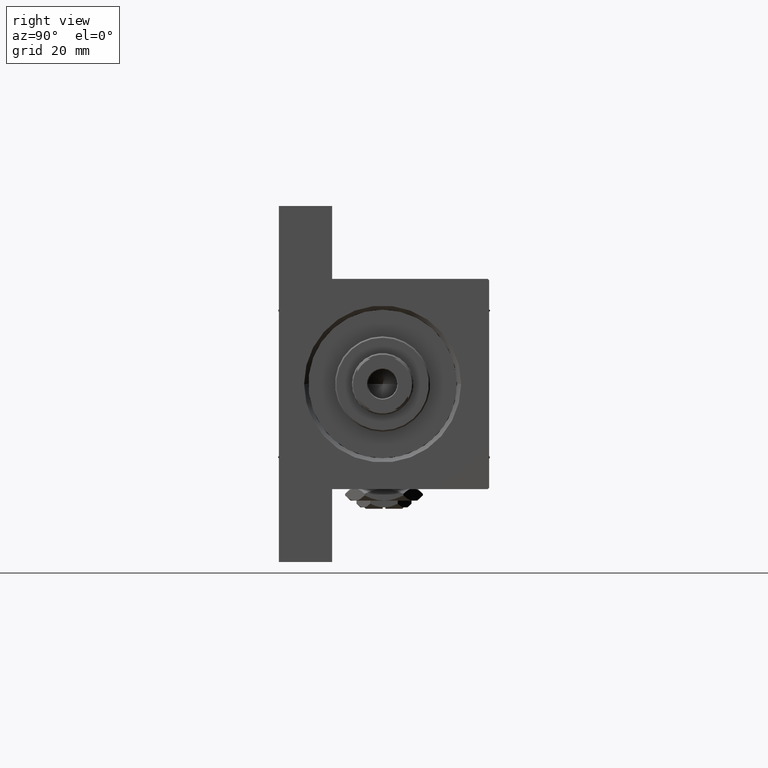
[diagram: clean part render]
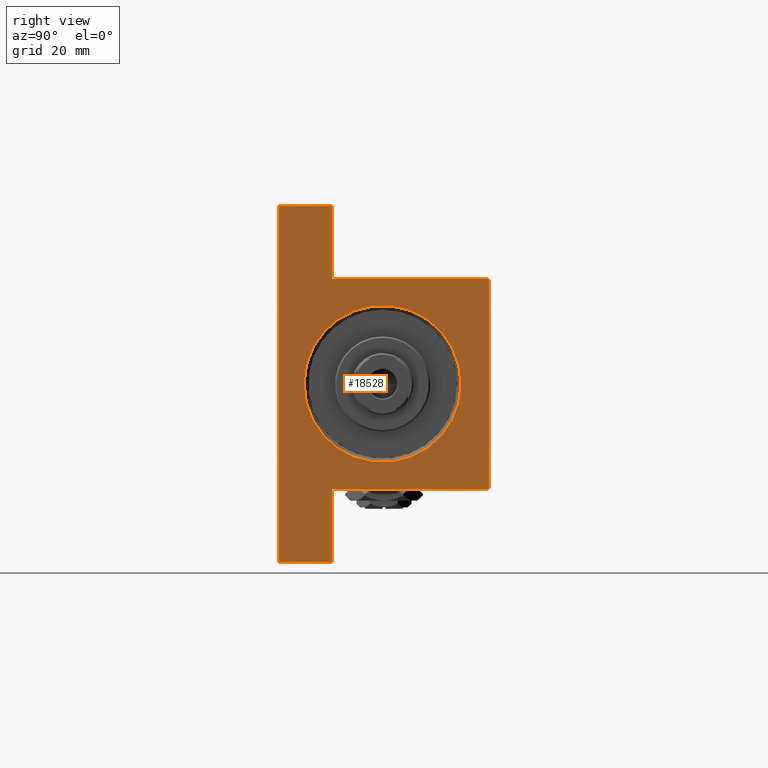
[diagram: same view with one face highlighted and labeled with its STEP entity id]
A machine part, right view. The second image highlights one B-rep face of the part: STEP entity #18528.
In plain terms, the highlighted planar face has unit normal (-1, 0, 0).
Its self-contained STEP definition (entity closure, byte-faithful):
#142 = EDGE_LOOP ( 'NONE', ( #10374, #45259, #18680, #6084, #9043, #12501, #19464, #40802, #32150, #34679 ) ) ;
#604 = CARTESIAN_POINT ( 'NONE',  ( 174.0000000000000284, 63.50000000000000000, -18.50000000000000000 ) ) ;
#2286 = CARTESIAN_POINT ( 'NONE',  ( 174.0000000000000000, -37.50000000000000000, 36.99999999999997868 ) ) ;
#2413 = CARTESIAN_POINT ( 'NONE',  ( 174.0000000000000000, -63.50000000000002842, -18.50000000000000000 ) ) ;
#3007 = VERTEX_POINT ( 'NONE', #19843 ) ;
#3911 = LINE ( 'NONE', #34521, #8886 ) ;
#4244 = EDGE_CURVE ( 'NONE', #33215, #37586, #14670, .T. ) ;
#4358 = AXIS2_PLACEMENT_3D ( 'NONE', #42066, #30586, #30097 ) ;
#4539 = DIRECTION ( 'NONE',  ( -1.000000000000000000, -0.000000000000000000, 0.000000000000000000 ) ) ;
#5129 = CARTESIAN_POINT ( 'NONE',  ( 174.0000000000000000, 37.00000000000000000, 37.49999999999999289 ) ) ;
#5724 = AXIS2_PLACEMENT_3D ( 'NONE', #16077, #27530, #35020 ) ;
#5906 = LINE ( 'NONE', #2413, #6669 ) ;
#6065 = CARTESIAN_POINT ( 'NONE',  ( 174.0000000000000000, 37.50000000000000000, 37.49999999999999289 ) ) ;
#6084 = ORIENTED_EDGE ( 'NONE', *, *, #46337, .T. ) ;
#6669 = VECTOR ( 'NONE', #25522, 1000.000000000000000 ) ;
#8013 = VECTOR ( 'NONE', #35561, 1000.000000000000000 ) ;
#8276 = CARTESIAN_POINT ( 'NONE',  ( 174.0000000000000000, 0.000000000000000000, 0.000000000000000000 ) ) ;
#8886 = VECTOR ( 'NONE', #11125, 1000.000000000000000 ) ;
#9043 = ORIENTED_EDGE ( 'NONE', *, *, #21683, .T. ) ;
#9373 = EDGE_LOOP ( 'NONE', ( #43297, #13211 ) ) ;
#9900 = CARTESIAN_POINT ( 'NONE',  ( 174.0000000000000000, -37.00000000000000000, 37.49999999999997868 ) ) ;
#10345 = DIRECTION ( 'NONE',  ( -0.000000000000000000, -1.000000000000000000, -0.000000000000000000 ) ) ;
#10374 = ORIENTED_EDGE ( 'NONE', *, *, #25444, .F. ) ;
#11125 = DIRECTION ( 'NONE',  ( 0.000000000000000000, -1.000000000000000000, 0.000000000000000000 ) ) ;
#11870 = AXIS2_PLACEMENT_3D ( 'NONE', #8276, #4539, #42401 ) ;
#11912 = CARTESIAN_POINT ( 'NONE',  ( 174.0000000000000000, -37.50000000000000000, 37.49999999999997868 ) ) ;
#11999 = FACE_BOUND ( 'NONE', #9373, .T. ) ;
#12501 = ORIENTED_EDGE ( 'NONE', *, *, #31206, .T. ) ;
#12864 = LINE ( 'NONE', #47506, #13703 ) ;
#13211 = ORIENTED_EDGE ( 'NONE', *, *, #4244, .T. ) ;
#13345 = DIRECTION ( 'NONE',  ( 0.000000000000000000, -0.7071067811865474617, 0.7071067811865474617 ) ) ;
#13703 = VECTOR ( 'NONE', #13345, 1000.000000000000114 ) ;
#14292 = CARTESIAN_POINT ( 'NONE',  ( 174.0000000000000284, 63.50000000000000000, -18.50000000000000000 ) ) ;
#14670 = CIRCLE ( 'NONE', #4358, 27.99999999999999645 ) ;
#15354 = LINE ( 'NONE', #42780, #21409 ) ;
#15421 = VECTOR ( 'NONE', #10345, 1000.000000000000000 ) ;
#16077 = CARTESIAN_POINT ( 'NONE',  ( 174.0000000000000000, 0.000000000000000000, -0.5000000000000004441 ) ) ;
#16370 = LINE ( 'NONE', #11912, #8013 ) ;
#16828 = CARTESIAN_POINT ( 'NONE',  ( 174.0000000000000000, -63.50000000000002842, -18.50000000000000000 ) ) ;
#17664 = VECTOR ( 'NONE', #20934, 1000.000000000000114 ) ;
#18528 = ADVANCED_FACE ( 'NONE', ( #11999, #43153 ), #31661, .F. ) ;
#18680 = ORIENTED_EDGE ( 'NONE', *, *, #19980, .T. ) ;
#19411 = VERTEX_POINT ( 'NONE', #40379 ) ;
#19464 = ORIENTED_EDGE ( 'NONE', *, *, #48987, .T. ) ;
#19843 = CARTESIAN_POINT ( 'NONE',  ( 174.0000000000000284, 63.50000000000000000, -18.50000000000000000 ) ) ;
#19980 = EDGE_CURVE ( 'NONE', #36112, #22591, #15354, .T. ) ;
#20934 = DIRECTION ( 'NONE',  ( -0.000000000000000000, -0.7071067811865474617, -0.7071067811865474617 ) ) ;
#21409 = VECTOR ( 'NONE', #30557, 1000.000000000000000 ) ;
#21660 = CARTESIAN_POINT ( 'NONE',  ( 174.0000000000000000, 0.000000000000000000, -28.49999999999999645 ) ) ;
#21683 = EDGE_CURVE ( 'NONE', #34446, #33506, #16370, .T. ) ;
#22591 = VERTEX_POINT ( 'NONE', #9900 ) ;
#23861 = EDGE_CURVE ( 'NONE', #3007, #41885, #26966, .T. ) ;
#25117 = EDGE_CURVE ( 'NONE', #3007, #34927, #32749, .T. ) ;
#25436 = LINE ( 'NONE', #6065, #25562 ) ;
#25444 = EDGE_CURVE ( 'NONE', #39016, #41885, #25436, .T. ) ;
#25454 = CARTESIAN_POINT ( 'NONE',  ( 174.0000000000000000, -37.50000000000000000, 36.99999999999997868 ) ) ;
#25522 = DIRECTION ( 'NONE',  ( 0.000000000000000000, 0.000000000000000000, -1.000000000000000000 ) ) ;
#25562 = VECTOR ( 'NONE', #33185, 1000.000000000000000 ) ;
#26343 = EDGE_CURVE ( 'NONE', #39016, #36112, #12864, .T. ) ;
#26473 = DIRECTION ( 'NONE',  ( -1.067522139062650277E-15, -1.000000000000000000, 0.000000000000000000 ) ) ;
#26966 = LINE ( 'NONE', #604, #34298 ) ;
#27530 = DIRECTION ( 'NONE',  ( -1.000000000000000000, -0.000000000000000000, 0.000000000000000000 ) ) ;
#28769 = LINE ( 'NONE', #16828, #15421 ) ;
#28837 = CARTESIAN_POINT ( 'NONE',  ( 174.0000000000000000, -37.50000000000000711, -18.50000000000000355 ) ) ;
#30097 = DIRECTION ( 'NONE',  ( 0.000000000000000000, 0.000000000000000000, 1.000000000000000000 ) ) ;
#30557 = DIRECTION ( 'NONE',  ( 0.000000000000000000, -1.000000000000000000, -1.850371707708594316E-16 ) ) ;
#30586 = DIRECTION ( 'NONE',  ( -1.000000000000000000, -0.000000000000000000, 0.000000000000000000 ) ) ;
#30612 = CARTESIAN_POINT ( 'NONE',  ( 174.0000000000000000, 3.429011037612588881E-15, 27.49999999999999645 ) ) ;
#31206 = EDGE_CURVE ( 'NONE', #33506, #40895, #28769, .T. ) ;
#31661 = PLANE ( 'NONE',  #11870 ) ;
#32150 = ORIENTED_EDGE ( 'NONE', *, *, #25117, .F. ) ;
#32749 = LINE ( 'NONE', #14292, #43158 ) ;
#33185 = DIRECTION ( 'NONE',  ( 0.000000000000000000, 0.000000000000000000, -1.000000000000000000 ) ) ;
#33215 = VERTEX_POINT ( 'NONE', #30612 ) ;
#33506 = VERTEX_POINT ( 'NONE', #28837 ) ;
#34298 = VECTOR ( 'NONE', #26473, 1000.000000000000000 ) ;
#34446 = VERTEX_POINT ( 'NONE', #25454 ) ;
#34521 = CARTESIAN_POINT ( 'NONE',  ( 174.0000000000000000, 37.50000000000000000, -37.50000000000000000 ) ) ;
#34679 = ORIENTED_EDGE ( 'NONE', *, *, #23861, .T. ) ;
#34927 = VERTEX_POINT ( 'NONE', #35047 ) ;
#35020 = DIRECTION ( 'NONE',  ( 0.000000000000000000, 0.000000000000000000, 1.000000000000000000 ) ) ;
#35047 = CARTESIAN_POINT ( 'NONE',  ( 174.0000000000000284, 63.50000000000000000, -37.50000000000000000 ) ) ;
#35561 = DIRECTION ( 'NONE',  ( 0.000000000000000000, -9.251858538542972814E-17, -1.000000000000000000 ) ) ;
#35888 = CARTESIAN_POINT ( 'NONE',  ( 174.0000000000000000, 37.49999999999999289, -18.50000000000000000 ) ) ;
#36112 = VERTEX_POINT ( 'NONE', #5129 ) ;
#36384 = LINE ( 'NONE', #2286, #17664 ) ;
#37586 = VERTEX_POINT ( 'NONE', #21660 ) ;
#39016 = VERTEX_POINT ( 'NONE', #39290 ) ;
#39290 = CARTESIAN_POINT ( 'NONE',  ( 174.0000000000000000, 37.50000000000000000, 36.99999999999999289 ) ) ;
#40314 = EDGE_CURVE ( 'NONE', #34927, #19411, #3911, .T. ) ;
#40379 = CARTESIAN_POINT ( 'NONE',  ( 174.0000000000000000, -63.50000000000002842, -37.50000000000000000 ) ) ;
#40802 = ORIENTED_EDGE ( 'NONE', *, *, #40314, .F. ) ;
#40895 = VERTEX_POINT ( 'NONE', #46378 ) ;
#41885 = VERTEX_POINT ( 'NONE', #35888 ) ;
#42066 = CARTESIAN_POINT ( 'NONE',  ( 174.0000000000000000, 0.000000000000000000, -0.5000000000000004441 ) ) ;
#42401 = DIRECTION ( 'NONE',  ( 0.000000000000000000, 0.000000000000000000, 1.000000000000000000 ) ) ;
#42780 = CARTESIAN_POINT ( 'NONE',  ( 174.0000000000000000, 37.50000000000000000, 37.49999999999999289 ) ) ;
#43153 = FACE_OUTER_BOUND ( 'NONE', #142, .T. ) ;
#43158 = VECTOR ( 'NONE', #48198, 1000.000000000000000 ) ;
#43297 = ORIENTED_EDGE ( 'NONE', *, *, #44038, .T. ) ;
#44038 = EDGE_CURVE ( 'NONE', #37586, #33215, #48666, .T. ) ;
#45259 = ORIENTED_EDGE ( 'NONE', *, *, #26343, .T. ) ;
#46337 = EDGE_CURVE ( 'NONE', #22591, #34446, #36384, .T. ) ;
#46378 = CARTESIAN_POINT ( 'NONE',  ( 174.0000000000000000, -63.50000000000002842, -18.50000000000000000 ) ) ;
#47506 = CARTESIAN_POINT ( 'NONE',  ( 174.0000000000000000, 37.00000000000000000, 37.49999999999999289 ) ) ;
#48198 = DIRECTION ( 'NONE',  ( 0.000000000000000000, 0.000000000000000000, -1.000000000000000000 ) ) ;
#48666 = CIRCLE ( 'NONE', #5724, 27.99999999999999645 ) ;
#48987 = EDGE_CURVE ( 'NONE', #40895, #19411, #5906, .T. ) ;